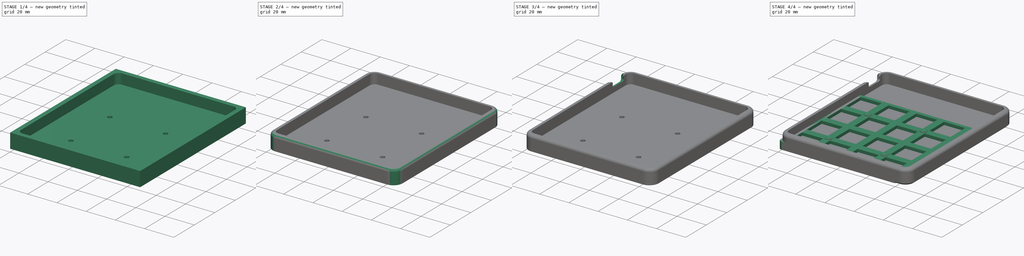
[diagram: build sequence overview — one tinted view per stage of 4, left to right]
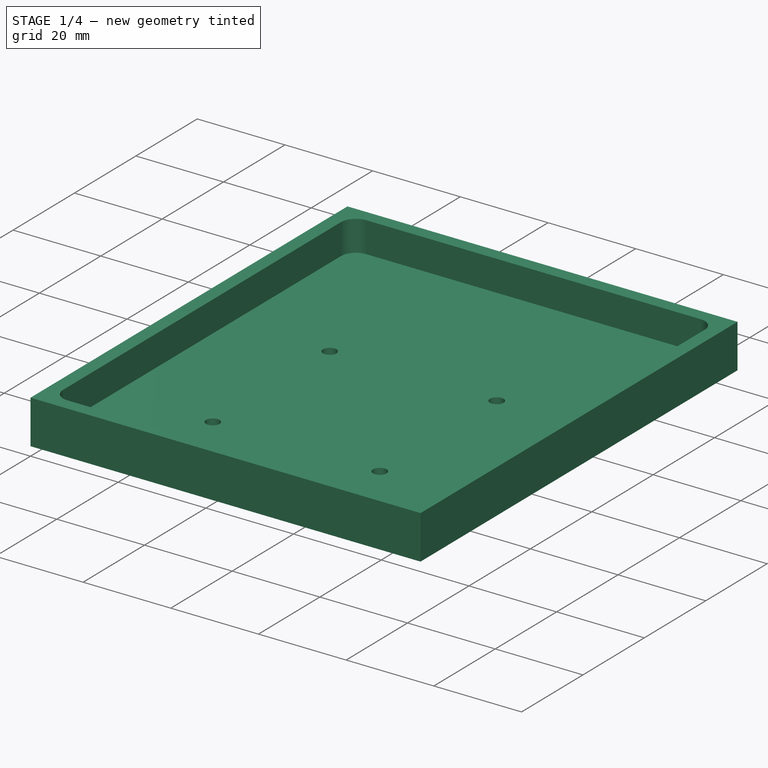
[diagram: stage 1 of 4 — iso view after this stage's code; geometry added in this stage tinted green]
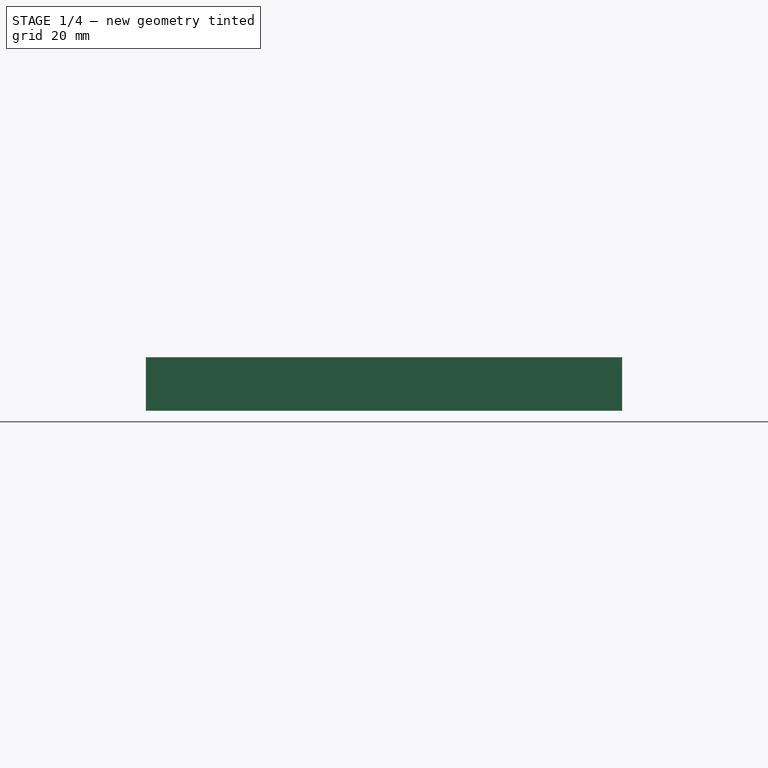
[diagram: stage 1 of 4 — front view after this stage's code; geometry added in this stage tinted green]
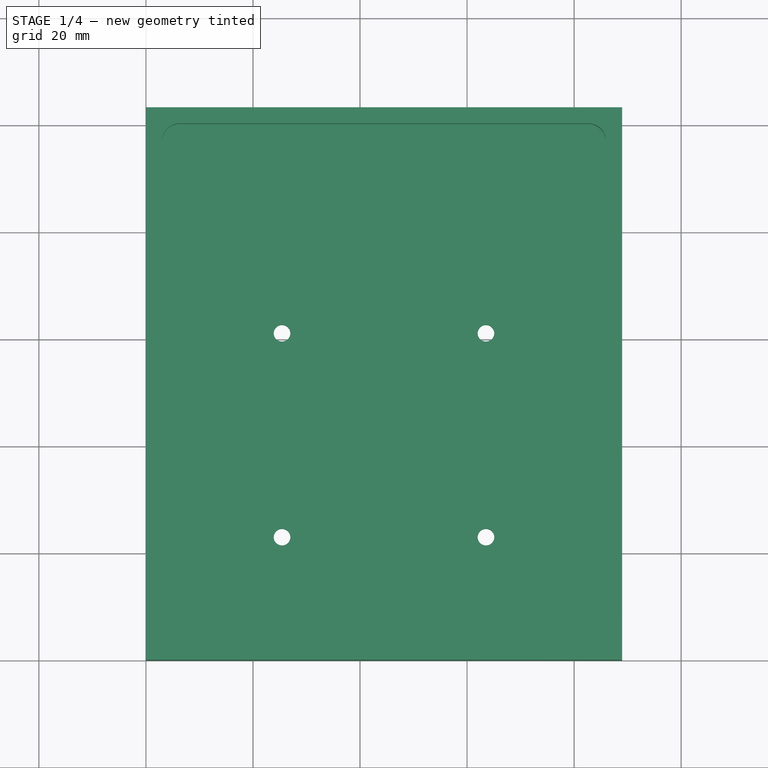
[diagram: stage 1 of 4 — top view after this stage's code; geometry added in this stage tinted green]
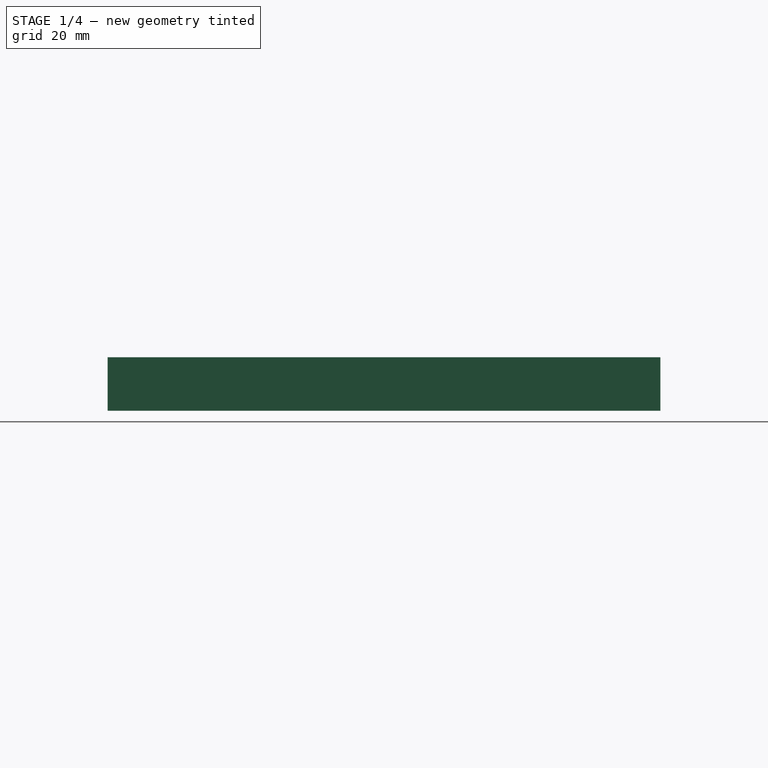
[diagram: stage 1 of 4 — right view after this stage's code; geometry added in this stage tinted green]
FCSTD DOCUMENT  (FreeCAD 0.19R)
Label: numpad
License: All rights reserved
LicenseURL: http://en.wikipedia.org/wiki/All_rights_reserved
objects: Sketcher::SketchObject×7, PartDesign::Fillet×5, PartDesign::Pocket×5, PartDesign::Pad×2, PartDesign::Chamfer×2, PartDesign::Body×2, Spreadsheet::Sheet×1
note: 37 computed .brp shape members not serialized (recipe doc carries the construction recipe); baked Part::Feature solids carry a one-line shape summary decoded from their .brp

FEATURE [PartDesign::Body] Body  label="Plate"
  Group = -> [Sketch,Pad,Chamfer,Fillet]
  Origin = -> Origin
  Placement = pos=(4,4,5) rot=(0,0,1;0rad)
  Tip = -> Fillet
  expr: .Placement.Base.x = <<Const>>.wall_thickness + <<Const>>.airgap
  expr: .Placement.Base.y = <<Const>>.wall_thickness + <<Const>>.airgap
  expr: .Placement.Base.z = <<Const>>.case_height - <<Const>>.plate_thickness
FEATURE [Sketcher::SketchObject] Sketch001
  FullyConstrained = true
  MapMode = 5
  Support = -> [XY_Plane001]
  expr: Constraints[9] = <<Const>>.switch * 5 + 2 * (<<Const>>.airgap + <<Const>>.wall_thickness)
  expr: Constraints[10] = <<Const>>.switch * 4.25 + 2 * (<<Const>>.airgap + <<Const>>.wall_thickness)
  sketch-geometry (4):
    g0: LineSegment StartX=0 StartY=0 StartZ=0 EndX=88.9625 EndY=0 EndZ=0
    g1: LineSegment StartX=88.9625 StartY=0 StartZ=0 EndX=88.9625 EndY=103.25 EndZ=0
    g2: LineSegment StartX=0 StartY=0 StartZ=0 EndX=0 EndY=103.25 EndZ=0
    g3: LineSegment StartX=0 StartY=103.25 StartZ=0 EndX=88.9625 EndY=103.25 EndZ=0
  constraints (11):
    c: Coincident(g0,g-1)
    c: Horizontal(g0)
    c: Coincident(g1,g0)
    c: Vertical(g1)
    c: Coincident(g2,g0)
    c: Vertical(g2)
    c: Coincident(g3,g2)
    c: Coincident(g3,g1)
    c: Horizontal(g3)
    c: DistanceY(g1,g1) = 103.25
    c: DistanceX(g0,g0) = 88.9625
FEATURE [PartDesign::Pad] Pad001
  Direction = (1,1,1)
  Length = 10
  Length2 = 100
  Profile = -> Sketch001
  Type = 0
  expr: Length = <<Const>>.case_height
FEATURE [Sketcher::SketchObject] Sketch002
  FullyConstrained = true
  MapMode = 5
  Placement = pos=(0,0,10) rot=(0,0,1;0rad)
  Support = -> [Pad001]
  expr: Constraints[5] = <<Const>>.wall_thickness
  expr: Constraints[15] = 2 * <<Const>>.airgap + <<Const>>.switch * 4.25
  expr: Constraints[16] = 2 * <<Const>>.airgap + <<Const>>.switch * 5
  sketch-geometry (6):
    g0: LineSegment StartX=0 StartY=0 StartZ=0 EndX=3 EndY=0 EndZ=0
    g1: LineSegment StartX=3 StartY=0 StartZ=0 EndX=3 EndY=3 EndZ=0
    g2: LineSegment StartX=3 StartY=3 StartZ=0 EndX=85.9625 EndY=3 EndZ=0
    g3: LineSegment StartX=85.9625 StartY=3 StartZ=0 EndX=85.9625 EndY=100.25 EndZ=0
    g4: LineSegment StartX=85.9625 StartY=100.25 StartZ=0 EndX=3 EndY=100.25 EndZ=0
    g5: LineSegment StartX=3 StartY=100.25 StartZ=0 EndX=3 EndY=3 EndZ=0
  constraints (17):
    c: Coincident(g0,g-1)
    c: Horizontal(g0)
    c: Coincident(g1,g0)
    c: Vertical(g1)
    c: Equal(g1,g0)
    c: DistanceX(g0,g0) = 3
    c: Coincident(g2,g1)
    c: Horizontal(g2)
    c: Coincident(g3,g2)
    c: Vertical(g3)
    c: Coincident(g4,g3)
    c: Horizontal(g4)
    c: Coincident(g5,g4)
    c: Coincident(g5,g2)
    c: Vertical(g5)
    c: DistanceX(g2,g2) = 82.9625
    c: DistanceY(g3,g3) = 97.25
FEATURE [PartDesign::Pocket] Pocket
  BaseFeature = -> Pad001
  Length = 7
  Length2 = 100
  Profile = -> Sketch002
  Type = 0
  expr: Length = <<Const>>.case_height - <<Const>>.case_bottom
FEATURE [Sketcher::SketchObject] Sketch003
  FullyConstrained = true
  MapMode = 5
  Placement = pos=(0,0,0) rot=(1,0,0;3.14159rad)
  Support = -> [Pocket]
  expr: Constraints[4] = <<Const>>.wall_thickness + <<Const>>.airgap
  expr: Constraints[5] = <<Const>>.switch * 1.125
  expr: Constraints[8] = <<Const>>.switch + <<Const>>.wall_thickness + <<Const>>.airgap
  expr: Constraints[13] = <<Const>>.threaded_insert
  expr: Constraints[27] = <<Const>>.switch * 2
  sketch-geometry (11):
    g0: LineSegment StartX=0 StartY=0 StartZ=0 EndX=4 EndY=0 EndZ=0
    g1: LineSegment StartX=4 StartY=0 StartZ=0 EndX=25.4313 EndY=0 EndZ=0
    g2: LineSegment StartX=25.4313 StartY=0 StartZ=0 EndX=25.4313 EndY=-23.05 EndZ=0
    g3: Circle CenterX=25.4313 CenterY=-23.05 CenterZ=0 NormalX=0 NormalY=0 NormalZ=1 AngleXU=0 Radius=1.55
    g4: Circle CenterX=63.5312 CenterY=-23.05 CenterZ=0 NormalX=0 NormalY=0 NormalZ=1 AngleXU=0 Radius=1.55
    g5: Circle CenterX=63.5312 CenterY=-61.15 CenterZ=0 NormalX=0 NormalY=0 NormalZ=1 AngleXU=0 Radius=1.55
    g6: Circle CenterX=25.4313 CenterY=-61.15 CenterZ=0 NormalX=0 NormalY=0 NormalZ=1 AngleXU=0 Radius=1.55
    g7: LineSegment StartX=63.5312 StartY=-23.05 StartZ=0 EndX=25.4313 EndY=-23.05 EndZ=0
    g8: LineSegment StartX=25.4313 StartY=-23.05 StartZ=0 EndX=25.4313 EndY=-61.15 EndZ=0
    g9: LineSegment StartX=25.4313 StartY=-61.15 StartZ=0 EndX=63.5312 EndY=-61.15 EndZ=0
    g10: LineSegment StartX=63.5312 StartY=-61.15 StartZ=0 EndX=63.5312 EndY=-23.05 EndZ=0
  constraints (28):
    c: Coincident(g0,g-1)
    c: Coincident(g1,g0)
    c: Horizontal(g1)
    c: Horizontal(g0)
    c: DistanceX(g0,g0) = 4
    c: DistanceX(g1,g1) = 21.4313
    c: Coincident(g2,g1)
    c: Vertical(g2)
    c: DistanceY(g2,g2) = 23.05
    c: Coincident(g3,g2)
    c: Equal(g3,g6)
    c: Equal(g6,g4)
    c: Equal(g4,g5)
    c: Diameter(g3) = 3.1
    c: Coincident(g7,g4)
    c: Coincident(g7,g3)
    c: Horizontal(g7)
    c: Coincident(g8,g3)
    c: Coincident(g8,g6)
    c: Vertical(g8)
    c: Coincident(g9,g6)
    c: Coincident(g9,g5)
    c: Coincident(g10,g5)
    c: Coincident(g10,g4)
    c: Vertical(g10)
    c: Horizontal(g9)
    c: Equal(g9,g8)
    c: DistanceY(g8,g8) = 38.1
FEATURE [PartDesign::Pocket] Pocket001
  BaseFeature = -> Pocket
  Length = 5
  Length2 = 100
  Profile = -> Sketch003
  Type = 1
FEATURE [PartDesign::Fillet] Fillet001  label="innerFillets"
  Base = -> Pocket001 [Edge30,Edge32,Edge34,Edge29]
  BaseFeature = -> Pocket001
  Radius = 3.38125
  SupportTransform = false
  expr: Radius = <<Const>>.switch / 16 * 2 + <<Const>>.airgap
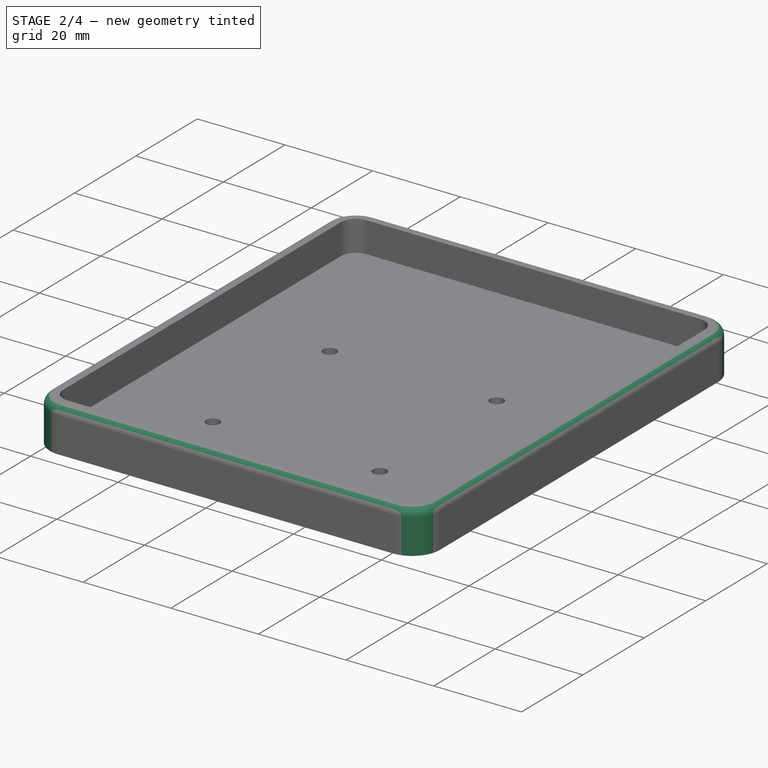
[diagram: stage 2 of 4 — iso view after this stage's code; geometry added in this stage tinted green]
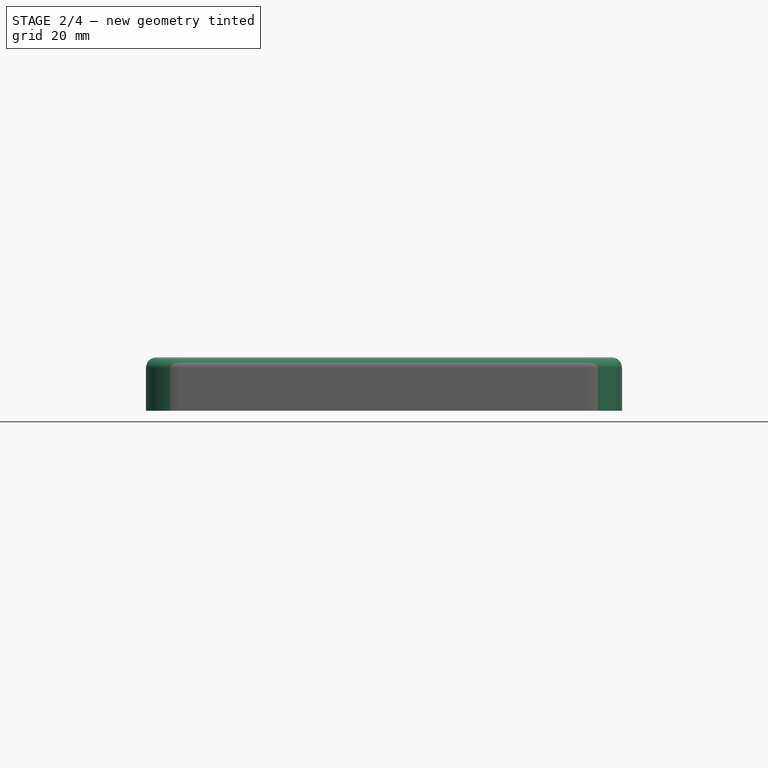
[diagram: stage 2 of 4 — front view after this stage's code; geometry added in this stage tinted green]
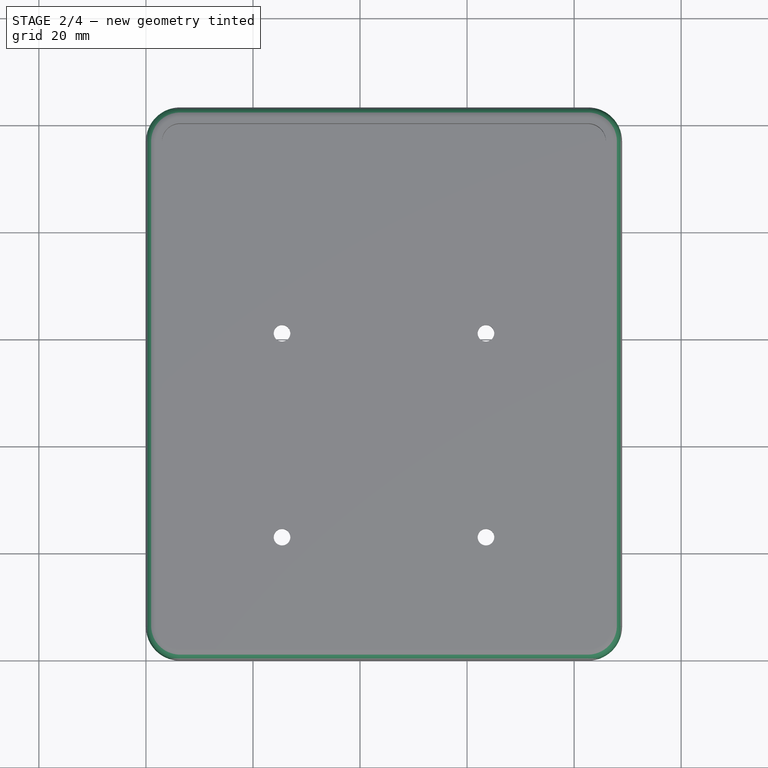
[diagram: stage 2 of 4 — top view after this stage's code; geometry added in this stage tinted green]
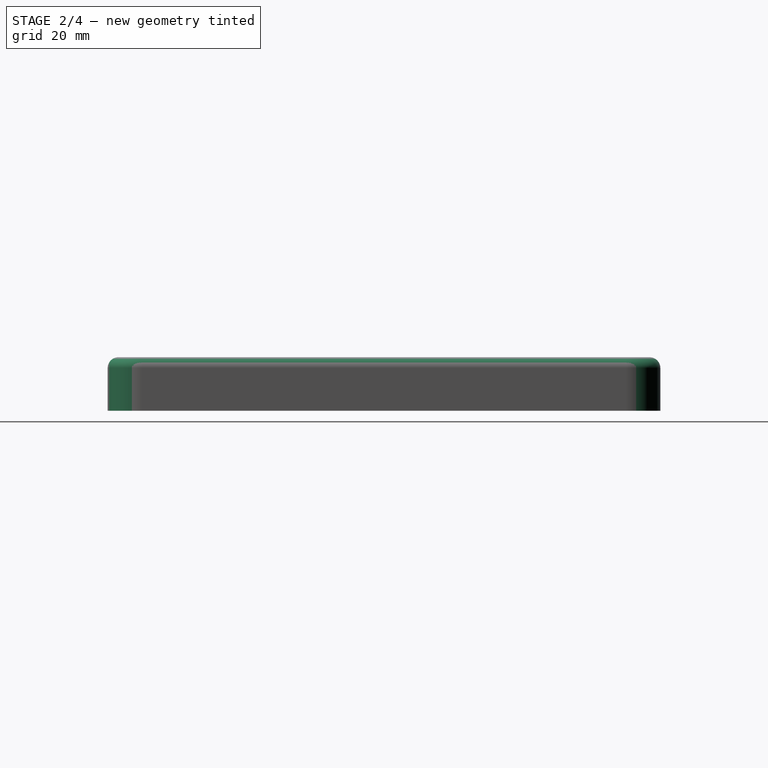
[diagram: stage 2 of 4 — right view after this stage's code; geometry added in this stage tinted green]
FEATURE [PartDesign::Fillet] Fillet002  label="outerFillets"
  Base = -> Fillet001 [Edge29,Edge30,Edge34,Edge32]
  BaseFeature = -> Fillet001
  Radius = 6.38125
  SupportTransform = false
  expr: Radius = <<Const>>.switch / 16 * 2 + <<Const>>.wall_thickness + <<Const>>.airgap
FEATURE [PartDesign::Fillet] Fillet003
  Base = -> Fillet002 [Edge1]
  BaseFeature = -> Fillet002
  Radius = 2
  SupportTransform = false
  expr: Radius = <<Const>>.wall_thickness * 2 / 3
FEATURE [Sketcher::SketchObject] Sketch004
  FullyConstrained = true
  MapMode = 5
  Placement = pos=(0,0,0) rot=(1,0,0;3.14159rad)
  Support = -> [Fillet003]
  expr: Constraints[15] = <<Const>>.feet
  expr: Constraints[16] = <<Const>>.switch * 4
  expr: Constraints[24] = <<Const>>.switch / 16 * 2 + <<Const>>.airgap + <<Const>>.wall_thickness
  sketch-geometry (10):
    g0: Circle CenterX=82.5812 CenterY=-6.38125 CenterZ=0 NormalX=0 NormalY=0 NormalZ=1 AngleXU=0 Radius=3.5
    g1: Circle CenterX=6.38125 CenterY=-6.38125 CenterZ=0 NormalX=0 NormalY=0 NormalZ=1 AngleXU=0 Radius=3.5
    g2: Circle CenterX=6.38125 CenterY=-96.3712 CenterZ=0 NormalX=0 NormalY=0 NormalZ=1 AngleXU=0 Radius=3.5
    g3: Circle CenterX=82.5812 CenterY=-96.3712 CenterZ=0 NormalX=0 NormalY=0 NormalZ=1 AngleXU=0 Radius=3.5
    g4: LineSegment StartX=82.5812 StartY=-6.38125 StartZ=0 EndX=6.38125 EndY=-6.38125 EndZ=0
    g5: LineSegment StartX=6.38125 StartY=-6.38125 StartZ=0 EndX=6.38125 EndY=-96.3712 EndZ=0
    g6: LineSegment StartX=6.38125 StartY=-96.3712 StartZ=0 EndX=82.5812 EndY=-96.3712 EndZ=0
    g7: LineSegment StartX=82.5812 StartY=-96.3712 StartZ=0 EndX=82.5812 EndY=-6.38125 EndZ=0
    g8: LineSegment StartX=6.38125 StartY=-6.38125 StartZ=0 EndX=6.38125 EndY=0 EndZ=0
    g9: LineSegment StartX=6.38125 StartY=0 StartZ=0 EndX=0 EndY=0 EndZ=0
  constraints (25):
    c: Coincident(g4,g0)
    c: Coincident(g4,g1)
    c: Horizontal(g4)
    c: Coincident(g5,g1)
    c: Coincident(g5,g2)
    c: Vertical(g5)
    c: Coincident(g6,g2)
    c: Coincident(g6,g3)
    c: Coincident(g7,g3)
    c: Coincident(g7,g0)
    c: Vertical(g7)
    c: Horizontal(g6)
    c: Equal(g0,g1)
    c: Equal(g1,g2)
    c: Equal(g2,g3)
    c: Diameter(g1) = 7
    c: DistanceX(g4,g4) = 76.2
    c: DistanceY(g5,g5) = 89.99
    c: Coincident(g8,g1)
    c: Vertical(g8)
    c: Coincident(g9,g8)
    c: Coincident(g9,g-1)
    c: Horizontal(g9)
    c: Equal(g8,g9)
    c: DistanceX(g9,g9) = 6.38125
FEATURE [PartDesign::Pocket] Pocket002
  BaseFeature = -> Fillet003
  Length = 1
  Length2 = 100
  Profile = -> Sketch004
  Type = 0
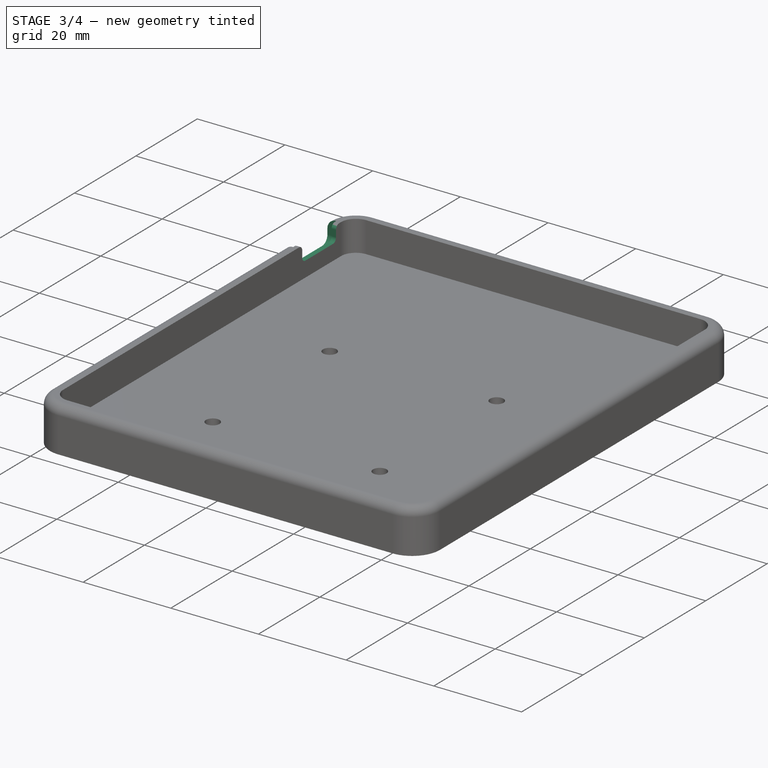
[diagram: stage 3 of 4 — iso view after this stage's code; geometry added in this stage tinted green]
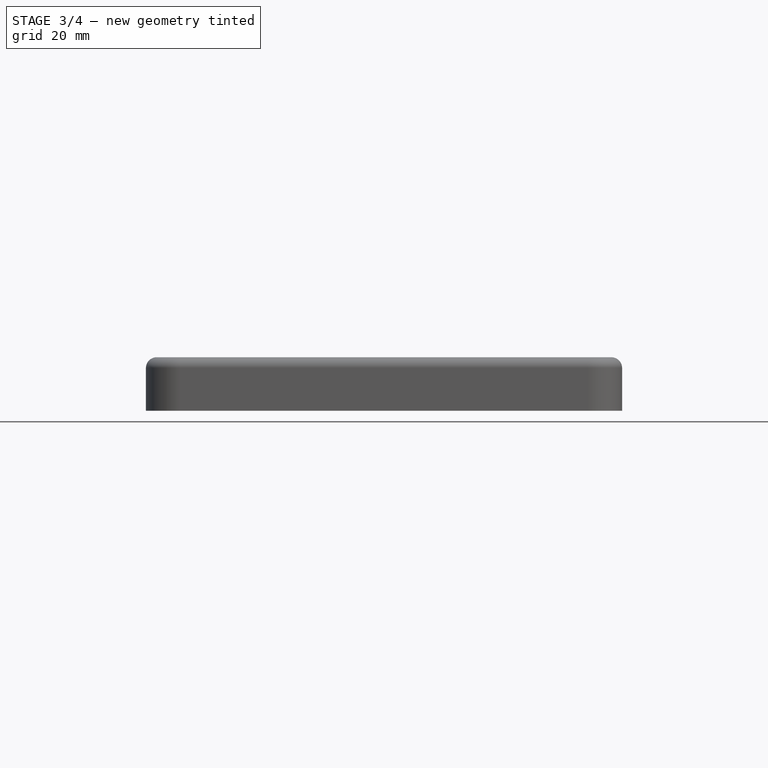
[diagram: stage 3 of 4 — front view after this stage's code; geometry added in this stage tinted green]
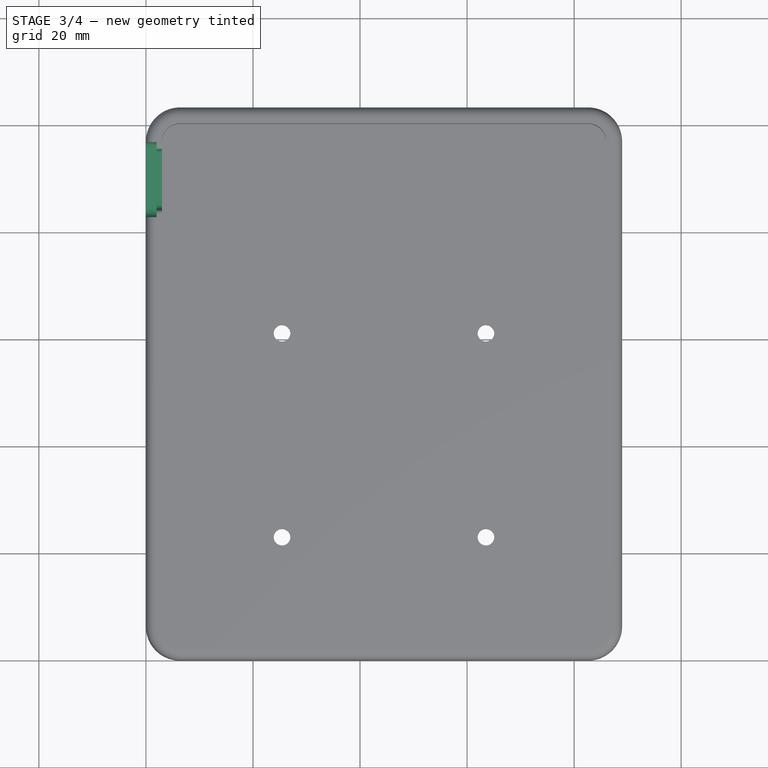
[diagram: stage 3 of 4 — top view after this stage's code; geometry added in this stage tinted green]
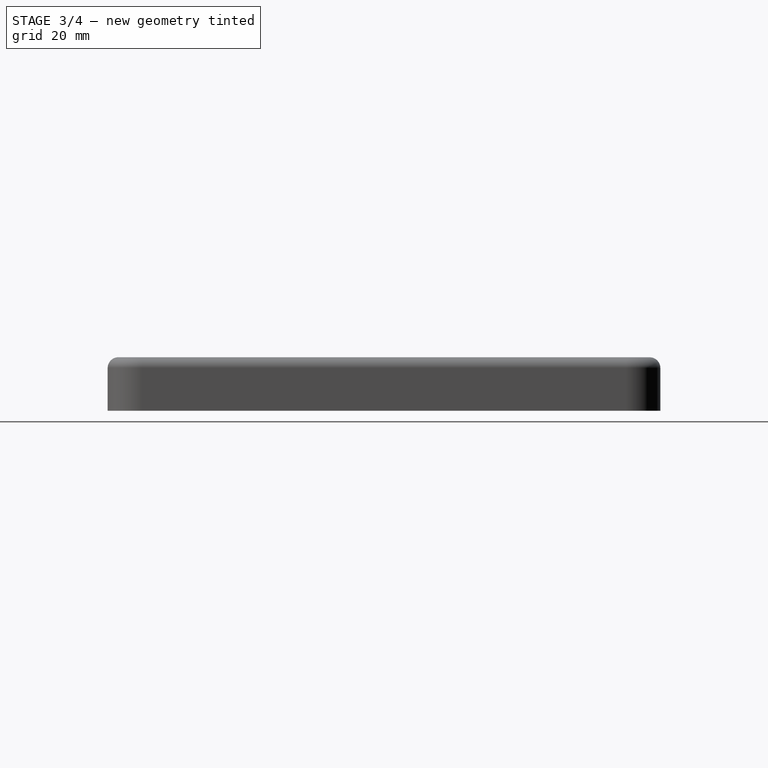
[diagram: stage 3 of 4 — right view after this stage's code; geometry added in this stage tinted green]
FEATURE [Sketcher::SketchObject] Sketch005
  FullyConstrained = true
  MapMode = 5
  Placement = pos=(0,0,0) rot=(0.57735,-0.57735,-0.57735;2.0944rad)
  Support = -> [Pocket002]
  expr: Constraints[27] = <<Const>>.case_height
  expr: Constraints[5] = <<Const>>.case_bottom + 3.5
  expr: Constraints[2] = <<Const>>.wall_thickness + <<Const>>.airgap + <<Const>>.switch * 4.5
  sketch-geometry (9):
    g0: LineSegment StartX=0 StartY=0 StartZ=0 EndX=-89.725 EndY=0 EndZ=0
    g1: LineSegment StartX=-89.725 StartY=0 StartZ=0 EndX=-89.725 EndY=6.5 EndZ=0
    g2: LineSegment StartX=-89.725 StartY=6.5 StartZ=0 EndX=-85.225 EndY=6.5 EndZ=0
    g3: LineSegment StartX=-89.725 StartY=6.5 StartZ=0 EndX=-94.225 EndY=6.5 EndZ=0
    g4: ArcOfCircle CenterX=-85.225 CenterY=7.5 CenterZ=0 NormalX=0 NormalY=0 NormalZ=1 AngleXU=0 Radius=1 StartAngle=4.71239 EndAngle=6.28319
    g5: ArcOfCircle CenterX=-94.225 CenterY=7.5 CenterZ=0 NormalX=0 NormalY=0 NormalZ=1 AngleXU=0 Radius=1 StartAngle=3.14159 EndAngle=4.71239
    g6: LineSegment StartX=-95.225 StartY=7.5 StartZ=0 EndX=-95.225 EndY=17.5 EndZ=0
    g7: LineSegment StartX=-84.225 StartY=7.5 StartZ=0 EndX=-84.225 EndY=17.5 EndZ=0
    g8: LineSegment StartX=-95.225 StartY=17.5 StartZ=0 EndX=-84.225 EndY=17.5 EndZ=0
  constraints (28):
    c: Coincident(g0,g-1)
    c: Horizontal(g0)
    c: DistanceX(g0,g0) = 89.725
    c: Coincident(g1,g0)
    c: Vertical(g1)
    c: DistanceY(g1,g1) = 6.5
    c: Coincident(g2,g1)
    c: Horizontal(g2)
    c: Coincident(g3,g1)
    c: Horizontal(g3)
    c: Equal(g3,g2)
    c: Coincident(g4,g2)
    c: Coincident(g5,g3)
    c: Horizontal(g5,g4)
    c: Horizontal(g4,g5)
    c: Horizontal(g5,g4)
    c: Vertical(g3,g5)
    c: Vertical(g2,g4)
    c: Radius(g4) = 1
    c: Coincident(g6,g5)
    c: Vertical(g6)
    c: Coincident(g7,g4)
    c: Vertical(g7)
    c: Coincident(g8,g6)
    c: Coincident(g8,g7)
    c: Horizontal(g8)
    c: DistanceX(g8,g8) = 11
    c: DistanceY(g7,g7) = 10
FEATURE [PartDesign::Pocket] Pocket003
  BaseFeature = -> Pocket002
  Length = 5
  Length2 = 100
  Profile = -> Sketch005
  Type = 0
FEATURE [Sketcher::SketchObject] Sketch006
  FullyConstrained = true
  MapMode = 5
  Placement = pos=(0,0,0) rot=(0.57735,-0.57735,-0.57735;2.0944rad)
  Support = -> [Pocket003]
  expr: Constraints[27] = <<Const>>.case_height
  expr: Constraints[25] = 1 + 1.5 / 2
  expr: Constraints[24] = 11 + 1.5 * 2
  expr: Constraints[16] = <<Const>>.case_bottom + 3.5 - 1.5
  expr: Constraints[2] = <<Const>>.wall_thickness + <<Const>>.airgap + <<Const>>.switch * 4.5
  sketch-geometry (9):
    g0: LineSegment StartX=0 StartY=0 StartZ=0 EndX=-89.725 EndY=0 EndZ=0
    g1: LineSegment StartX=-89.725 StartY=5 StartZ=0 EndX=-94.975 EndY=5 EndZ=0
    g2: LineSegment StartX=-89.725 StartY=5 StartZ=0 EndX=-84.475 EndY=5 EndZ=0
    g3: ArcOfCircle CenterX=-94.975 CenterY=6.75 CenterZ=0 NormalX=0 NormalY=0 NormalZ=1 AngleXU=0 Radius=1.75 StartAngle=3.14159 EndAngle=4.71239
    g4: ArcOfCircle CenterX=-84.475 CenterY=6.75 CenterZ=0 NormalX=0 NormalY=0 NormalZ=1 AngleXU=0 Radius=1.75 StartAngle=4.71239 EndAngle=6.28319
    g5: LineSegment StartX=-89.725 StartY=5 StartZ=0 EndX=-89.725 EndY=0 EndZ=0
    g6: LineSegment StartX=-96.725 StartY=6.75 StartZ=0 EndX=-96.725 EndY=16.75 EndZ=0
    g7: LineSegment StartX=-96.725 StartY=16.75 StartZ=0 EndX=-82.725 EndY=16.75 EndZ=0
    g8: LineSegment StartX=-82.725 StartY=16.75 StartZ=0 EndX=-82.725 EndY=6.75 EndZ=0
  constraints (28):
    c: Coincident(g0,g-1)
    c: Horizontal(g0)
    c: DistanceX(g0,g0) = 89.725
    c: Horizontal(g1)
    c: Coincident(g2,g1)
    c: Horizontal(g2)
    c: Coincident(g3,g1)
    c: Coincident(g4,g2)
    c: Horizontal(g4,g4)
    c: Horizontal(g4,g3)
    c: Horizontal(g3,g3)
    c: Vertical(g1,g3)
    c: Vertical(g2,g4)
    c: Coincident(g5,g1)
    c: Coincident(g5,g0)
    c: Vertical(g5)
    c: DistanceY(g5,g5) = 5
    c: Coincident(g6,g3)
    c: Vertical(g6)
    c: Coincident(g7,g6)
    c: Horizontal(g7)
    c: Coincident(g8,g7)
    c: Coincident(g8,g4)
    c: Vertical(g8)
    c: DistanceX(g7,g7) = 14
    c: Radius(g3) = 1.75
    c: Equal(g1,g2)
    c: DistanceY(g8,g8) = 10
FEATURE [PartDesign::Pocket] Pocket004
  BaseFeature = -> Pocket003
  Length = 2
  Length2 = 100
  Profile = -> Sketch006
  Type = 0
  expr: Length = <<Const>>.wall_thickness - 1
FEATURE [PartDesign::Fillet] Fillet004
  Base = -> Pocket004 [Edge4,Edge14]
  BaseFeature = -> Pocket004
  Radius = 1
  SupportTransform = false
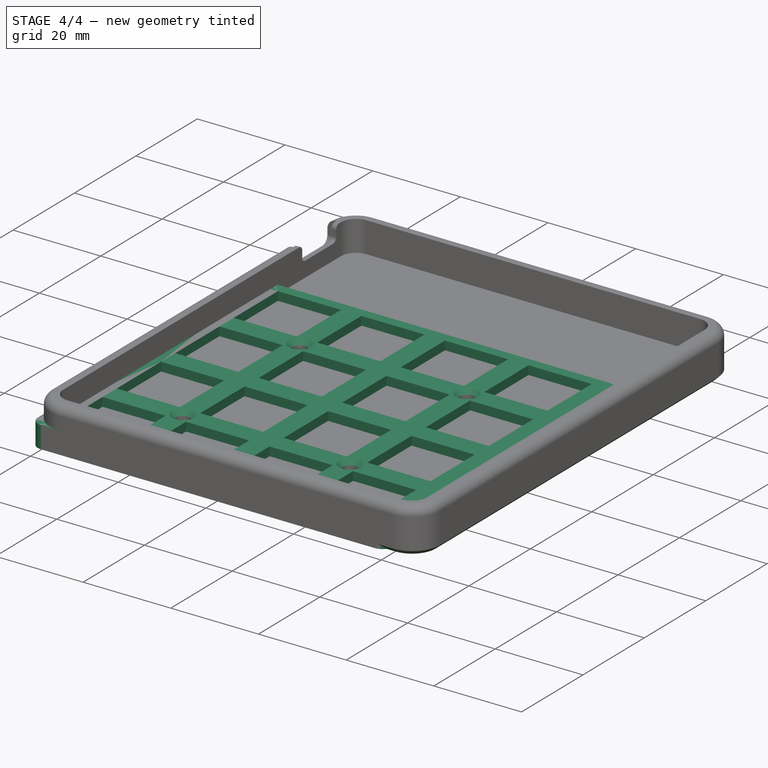
[diagram: stage 4 of 4 — iso view after this stage's code; geometry added in this stage tinted green]
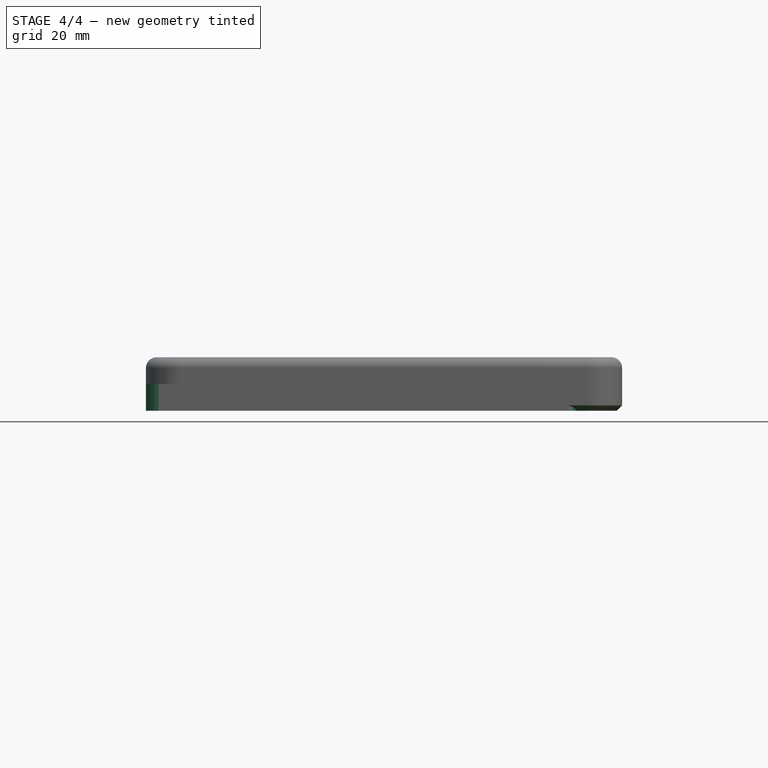
[diagram: stage 4 of 4 — front view after this stage's code; geometry added in this stage tinted green]
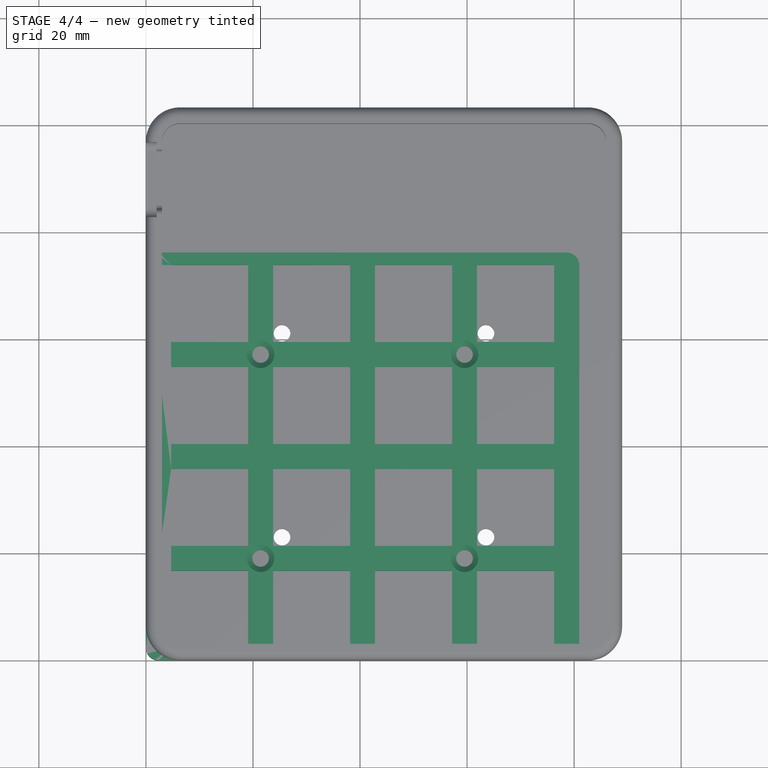
[diagram: stage 4 of 4 — top view after this stage's code; geometry added in this stage tinted green]
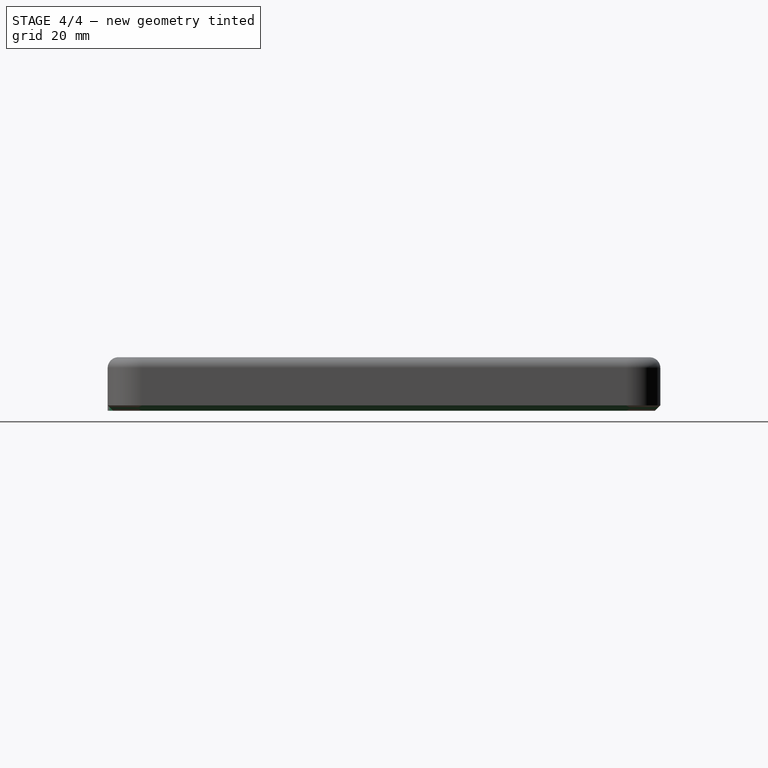
[diagram: stage 4 of 4 — right view after this stage's code; geometry added in this stage tinted green]
FEATURE [Sketcher::SketchObject] Sketch
  FullyConstrained = true
  MapMode = 5
  Support = -> [XY_Plane]
  expr: Constraints[6] = <<Const>>.switch * 4
  expr: Constraints[10] = <<Const>>.switch * 4.25
  expr: Constraints[20] = <<Const>>.switch_hole
  expr: Constraints[212] = <<Const>>.switch
  expr: Constraints[221] = <<Const>>.threaded_insert
  sketch-geometry (93):
    g0: LineSegment StartX=0 StartY=0 StartZ=0 EndX=80.9625 EndY=0 EndZ=0
    g1: LineSegment StartX=80.9625 StartY=0 StartZ=0 EndX=80.9625 EndY=76.2 EndZ=0
    g2: LineSegment StartX=0 StartY=0 StartZ=0 EndX=0 EndY=76.2 EndZ=0
    g3: LineSegment StartX=0 StartY=76.2 StartZ=0 EndX=80.9625 EndY=76.2 EndZ=0
    g4: LineSegment StartX=4.70625 StartY=16.725 StartZ=0 EndX=4.70625 EndY=2.325 EndZ=0
    g5: LineSegment StartX=4.70625 StartY=2.325 StartZ=0 EndX=19.1063 EndY=2.325 EndZ=0
    g6: LineSegment StartX=19.1063 StartY=2.325 StartZ=0 EndX=19.1063 EndY=16.725 EndZ=0
    g7: LineSegment StartX=4.70625 StartY=16.725 StartZ=0 EndX=19.1063 EndY=16.725 EndZ=0
    g8: LineSegment StartX=23.7563 StartY=16.725 StartZ=0 EndX=23.7563 EndY=2.325 EndZ=0
    g9: LineSegment StartX=23.7563 StartY=2.325 StartZ=0 EndX=38.1562 EndY=2.325 EndZ=0
    g10: LineSegment StartX=38.1562 StartY=2.325 StartZ=0 EndX=38.1562 EndY=16.725 EndZ=0
    g11: LineSegment StartX=23.7563 StartY=16.725 StartZ=0 EndX=38.1562 EndY=16.725 EndZ=0
    g12: LineSegment StartX=42.8063 StartY=16.725 StartZ=0 EndX=42.8063 EndY=2.325 EndZ=0
    g13: LineSegment StartX=42.8063 StartY=2.325 StartZ=0 EndX=57.2063 EndY=2.325 EndZ=0
    g14: LineSegment StartX=57.2063 StartY=2.325 StartZ=0 EndX=57.2063 EndY=16.725 EndZ=0
    g15: LineSegment StartX=42.8063 StartY=16.725 StartZ=0 EndX=57.2063 EndY=16.725 EndZ=0
    g16: LineSegment StartX=61.8563 StartY=16.725 StartZ=0 EndX=61.8563 EndY=2.325 EndZ=0
    g17: LineSegment StartX=61.8563 StartY=2.325 StartZ=0 EndX=76.2563 EndY=2.325 EndZ=0
    g18: LineSegment StartX=76.2563 StartY=2.325 StartZ=0 EndX=76.2563 EndY=16.725 EndZ=0
    g19: LineSegment StartX=61.8563 StartY=16.725 StartZ=0 EndX=76.2563 EndY=16.725 EndZ=0
    g20: LineSegment StartX=4.70625 StartY=35.775 StartZ=0 EndX=4.70625 EndY=21.375 EndZ=0
    g21: LineSegment StartX=4.70625 StartY=21.375 StartZ=0 EndX=19.1063 EndY=21.375 EndZ=0
    g22: LineSegment StartX=19.1063 StartY=21.375 StartZ=0 EndX=19.1063 EndY=35.775 EndZ=0
    g23: LineSegment StartX=4.70625 StartY=35.775 StartZ=0 EndX=19.1063 EndY=35.775 EndZ=0
    g24: LineSegment StartX=23.7563 StartY=35.775 StartZ=0 EndX=23.7563 EndY=21.375 EndZ=0
    g25: LineSegment StartX=23.7563 StartY=21.375 StartZ=0 EndX=38.1562 EndY=21.375 EndZ=0
    g26: LineSegment StartX=38.1562 StartY=21.375 StartZ=0 EndX=38.1562 EndY=35.775 EndZ=0
    g27: LineSegment StartX=23.7563 StartY=35.775 StartZ=0 EndX=38.1562 EndY=35.775 EndZ=0
    g28: LineSegment StartX=42.8063 StartY=35.775 StartZ=0 EndX=42.8063 EndY=21.375 EndZ=0
    g29: LineSegment StartX=42.8063 StartY=21.375 StartZ=0 EndX=57.2063 EndY=21.375 EndZ=0
    g30: LineSegment StartX=57.2063 StartY=21.375 StartZ=0 EndX=57.2063 EndY=35.775 EndZ=0
    g31: LineSegment StartX=42.8063 StartY=35.775 StartZ=0 EndX=57.2063 EndY=35.775 EndZ=0
    g32: LineSegment StartX=61.8563 StartY=35.775 StartZ=0 EndX=61.8563 EndY=21.375 EndZ=0
    g33: LineSegment StartX=61.8563 StartY=21.375 StartZ=0 EndX=76.2563 EndY=21.375 EndZ=0
    g34: LineSegment StartX=76.2563 StartY=21.375 StartZ=0 EndX=76.2563 EndY=35.775 EndZ=0
    g35: LineSegment StartX=61.8563 StartY=35.775 StartZ=0 EndX=76.2563 EndY=35.775 EndZ=0
    g36: LineSegment StartX=4.70625 StartY=54.825 StartZ=0 EndX=4.70625 EndY=40.425 EndZ=0
    g37: LineSegment StartX=4.70625 StartY=40.425 StartZ=0 EndX=19.1063 EndY=40.425 EndZ=0
    g38: LineSegment StartX=19.1063 StartY=40.425 StartZ=0 EndX=19.1063 EndY=54.825 EndZ=0
    g39: LineSegment StartX=4.70625 StartY=54.825 StartZ=0 EndX=19.1063 EndY=54.825 EndZ=0
    g40: LineSegment StartX=23.7563 StartY=54.825 StartZ=0 EndX=23.7563 EndY=40.425 EndZ=0
    g41: LineSegment StartX=23.7563 StartY=40.425 StartZ=0 EndX=38.1562 EndY=40.425 EndZ=0
    g42: LineSegment StartX=38.1562 StartY=40.425 StartZ=0 EndX=38.1562 EndY=54.825 EndZ=0
    g43: LineSegment StartX=23.7563 StartY=54.825 StartZ=0 EndX=38.1562 EndY=54.825 EndZ=0
    g44: LineSegment StartX=42.8063 StartY=54.825 StartZ=0 EndX=42.8063 EndY=40.425 EndZ=0
    g45: LineSegment StartX=42.8063 StartY=40.425 StartZ=0 EndX=57.2063 EndY=40.425 EndZ=0
    g46: LineSegment StartX=57.2063 StartY=40.425 StartZ=0 EndX=57.2063 EndY=54.825 EndZ=0
    g47: LineSegment StartX=42.8063 StartY=54.825 StartZ=0 EndX=57.2063 EndY=54.825 EndZ=0
    g48: LineSegment StartX=61.8563 StartY=54.825 StartZ=0 EndX=61.8563 EndY=40.425 EndZ=0
    g49: LineSegment StartX=61.8563 StartY=40.425 StartZ=0 EndX=76.2563 EndY=40.425 EndZ=0
    g50: LineSegment StartX=76.2563 StartY=40.425 StartZ=0 EndX=76.2563 EndY=54.825 EndZ=0
    g51: LineSegment StartX=61.8563 StartY=54.825 StartZ=0 EndX=76.2563 EndY=54.825 EndZ=0
    g52: LineSegment StartX=4.70625 StartY=73.875 StartZ=0 EndX=4.70625 EndY=59.475 EndZ=0
    g53: LineSegment StartX=4.70625 StartY=59.475 StartZ=0 EndX=19.1063 EndY=59.475 EndZ=0
    g54: LineSegment StartX=19.1063 StartY=59.475 StartZ=0 EndX=19.1063 EndY=73.875 EndZ=0
    g55: LineSegment StartX=4.70625 StartY=73.875 StartZ=0 EndX=19.1063 EndY=73.875 EndZ=0
    g56: LineSegment StartX=23.7563 StartY=73.875 StartZ=0 EndX=23.7563 EndY=59.475 EndZ=0
    g57: LineSegment StartX=23.7563 StartY=59.475 StartZ=0 EndX=38.1562 EndY=59.475 EndZ=0
    g58: LineSegment StartX=38.1562 StartY=59.475 StartZ=0 EndX=38.1562 EndY=73.875 EndZ=0
    g59: LineSegment StartX=23.7563 StartY=73.875 StartZ=0 EndX=38.1562 EndY=73.875 EndZ=0
    g60: LineSegment StartX=42.8063 StartY=73.875 StartZ=0 EndX=42.8063 EndY=59.475 EndZ=0
    g61: LineSegment StartX=42.8063 StartY=73.875 StartZ=0 EndX=57.2063 EndY=73.875 EndZ=0
    g62: LineSegment StartX=57.2063 StartY=73.875 StartZ=0 EndX=57.2063 EndY=59.475 EndZ=0
    g63: LineSegment StartX=42.8063 StartY=59.475 StartZ=0 EndX=57.2063 EndY=59.475 EndZ=0
    g64: LineSegment StartX=61.8563 StartY=73.875 StartZ=0 EndX=61.8563 EndY=59.475 EndZ=0
    g65: LineSegment StartX=61.8563 StartY=59.475 StartZ=0 EndX=76.2563 EndY=59.475 EndZ=0
    g66: LineSegment StartX=76.2563 StartY=59.475 StartZ=0 EndX=76.2563 EndY=73.875 EndZ=0
    g67: LineSegment StartX=61.8563 StartY=73.875 StartZ=0 EndX=76.2563 EndY=73.875 EndZ=0
    g68: LineSegment StartX=4.70625 StartY=2.325 StartZ=0 EndX=23.7563 EndY=2.325 EndZ=0
    g69: LineSegment StartX=23.7563 StartY=2.325 StartZ=0 EndX=42.8063 EndY=2.325 EndZ=0
    g70: LineSegment StartX=42.8063 StartY=2.325 StartZ=0 EndX=61.8563 EndY=2.325 EndZ=0
    g71: LineSegment StartX=4.70625 StartY=2.325 StartZ=0 EndX=4.70625 EndY=21.375 EndZ=0
    g72: LineSegment StartX=4.70625 StartY=21.375 StartZ=0 EndX=4.70625 EndY=40.425 EndZ=0
    g73: LineSegment StartX=4.70625 StartY=40.425 StartZ=0 EndX=4.70625 EndY=59.475 EndZ=0
    g74: LineSegment StartX=0 StartY=76.2 StartZ=0 EndX=4.70625 EndY=73.875 EndZ=0
    g75: LineSegment StartX=0 StartY=0 StartZ=0 EndX=4.70625 EndY=2.325 EndZ=0
    g76: LineSegment StartX=80.9625 StartY=0 StartZ=0 EndX=76.2563 EndY=2.325 EndZ=0
    g77: Circle CenterX=59.5313 CenterY=19.05 CenterZ=0 NormalX=0 NormalY=0 NormalZ=1 AngleXU=0 Radius=1.55
    g78: Circle CenterX=21.4313 CenterY=19.05 CenterZ=0 NormalX=0 NormalY=0 NormalZ=1 AngleXU=0 Radius=1.55
    g79: Circle CenterX=21.4312 CenterY=57.15 CenterZ=0 NormalX=0 NormalY=0 NormalZ=1 AngleXU=0 Radius=1.55
    g80: Circle CenterX=59.5312 CenterY=57.15 CenterZ=0 NormalX=0 NormalY=0 NormalZ=1 AngleXU=0 Radius=1.55
    g81: LineSegment StartX=21.4312 StartY=57.15 StartZ=0 EndX=19.1063 EndY=54.825 EndZ=0
    g82: LineSegment StartX=21.4312 StartY=57.15 StartZ=0 EndX=23.7563 EndY=54.825 EndZ=0
    g83: LineSegment StartX=21.4312 StartY=57.15 StartZ=0 EndX=23.7563 EndY=59.475 EndZ=0
    g84: LineSegment StartX=59.5312 StartY=57.15 StartZ=0 EndX=57.2063 EndY=54.825 EndZ=0
    g85: LineSegment StartX=59.5312 StartY=57.15 StartZ=0 EndX=61.8563 EndY=54.825 EndZ=0
    g86: LineSegment StartX=59.5312 StartY=57.15 StartZ=0 EndX=61.8563 EndY=59.475 EndZ=0
    g87: LineSegment StartX=19.1063 StartY=21.375 StartZ=0 EndX=21.4313 EndY=19.05 EndZ=0
    g88: LineSegment StartX=21.4313 StartY=19.05 StartZ=0 EndX=23.7563 EndY=21.375 EndZ=0
    g89: LineSegment StartX=21.4313 StartY=19.05 StartZ=0 EndX=23.7563 EndY=16.725 EndZ=0
    g90: LineSegment StartX=59.5313 StartY=19.05 StartZ=0 EndX=57.2063 EndY=16.725 EndZ=0
    g91: LineSegment StartX=59.5313 StartY=19.05 StartZ=0 EndX=61.8563 EndY=16.725 EndZ=0
    g92: LineSegment StartX=59.5313 StartY=19.05 StartZ=0 EndX=61.8563 EndY=21.375 EndZ=0
  constraints (257):
    c: Coincident(g0,g-1)
    c: Coincident(g1,g0)
    c: Vertical(g1)
    c: Coincident(g2,g0)
    c: Vertical(g2)
    c: Horizontal(g0)
    c: DistanceY(g1,g1) = 76.2
    c: Coincident(g3,g2)
    c: Coincident(g3,g1)
    c: Horizontal(g3)
    c: DistanceX(g0,g0) = 80.9625
    c: Vertical(g4)
    c: Coincident(g5,g4)
    c: Horizontal(g5)
    c: Coincident(g6,g5)
    c: Vertical(g6)
    c: Coincident(g7,g4)
    c: Coincident(g7,g6)
    c: Horizontal(g7)
    c: Equal(g7,g6)
    c: DistanceY(g6,g6) = 14.4
    c: Vertical(g8)
    c: Coincident(g9,g8)
    c: Horizontal(g9)
    c: Coincident(g10,g9)
    c: Vertical(g10)
    c: Coincident(g11,g8)
    c: Coincident(g11,g10)
    c: Horizontal(g11)
    c: Vertical(g12)
    c: Coincident(g13,g12)
    c: Horizontal(g13)
    c: Coincident(g14,g13)
    c: Vertical(g14)
    c: Coincident(g15,g12)
    c: Coincident(g15,g14)
    c: Vertical(g16)
    c: Coincident(g17,g16)
    c: Horizontal(g17)
    c: Coincident(g18,g17)
    c: Vertical(g18)
    c: Coincident(g19,g16)
    c: Coincident(g19,g18)
    c: Horizontal(g19)
    c: Vertical(g20)
    c: Coincident(g21,g20)
    c: Horizontal(g21)
    c: Coincident(g22,g21)
    c: Vertical(g22)
    c: Coincident(g23,g20)
    c: Coincident(g23,g22)
    c: Vertical(g24)
    c: Coincident(g25,g24)
    c: Horizontal(g25)
    c: Coincident(g26,g25)
    c: Vertical(g26)
    c: Coincident(g27,g24)
    c: Coincident(g27,g26)
    c: Horizontal(g27)
    c: Vertical(g28)
    c: Coincident(g29,g28)
    c: Horizontal(g29)
    c: Coincident(g30,g29)
    c: Vertical(g30)
    c: Coincident(g31,g28)
    c: Coincident(g31,g30)
    c: Horizontal(g31)
    c: Horizontal(g23)
    c: Vertical(g32)
    c: Coincident(g33,g32)
    c: Horizontal(g33)
    c: Coincident(g34,g33)
    c: Vertical(g34)
    c: Coincident(g35,g32)
    c: Coincident(g35,g34)
    c: Horizontal(g35)
    c: Vertical(g36)
    c: Coincident(g37,g36)
    c: Horizontal(g37)
    c: Coincident(g38,g37)
    c: Vertical(g38)
    c: Coincident(g39,g36)
    c: Coincident(g39,g38)
    c: Vertical(g40)
    c: Coincident(g41,g40)
    c: Horizontal(g41)
    c: Coincident(g42,g41)
    c: Coincident(g43,g40)
    c: Coincident(g43,g42)
    c: Horizontal(g43)
    c: Vertical(g44)
    c: Coincident(g45,g44)
    c: Horizontal(g45)
    c: Coincident(g46,g45)
    c: Vertical(g46)
    c: Coincident(g47,g44)
    c: Coincident(g47,g46)
    c: Vertical(g48)
    c: Coincident(g49,g48)
    c: Horizontal(g49)
    c: Coincident(g50,g49)
    c: Vertical(g50)
    c: Coincident(g51,g48)
    c: Coincident(g51,g50)
    c: Horizontal(g51)
    c: Horizontal(g47)
    c: Horizontal(g39)
    c: Vertical(g52)
    c: Coincident(g53,g52)
    c: Horizontal(g53)
    c: Coincident(g54,g53)
    c: Vertical(g54)
    c: Coincident(g55,g52)
    c: Coincident(g55,g54)
    c: Vertical(g56)
    c: Coincident(g57,g56)
    c: Horizontal(g57)
    c: Coincident(g58,g57)
    c: Vertical(g58)
    c: Coincident(g59,g56)
    c: Coincident(g59,g58)
    c: Horizontal(g59)
    c: Vertical(g60)
    c: Coincident(g61,g60)
    c: Horizontal(g61)
    c: Coincident(g62,g61)
    c: Vertical(g62)
    c: Coincident(g63,g60)
    c: Coincident(g63,g62)
    c: Vertical(g64)
    c: Coincident(g65,g64)
    c: Horizontal(g65)
    c: Coincident(g66,g65)
    c: Vertical(g66)
    c: Coincident(g67,g64)
    c: Coincident(g67,g66)
    c: Horizontal(g67)
    c: Horizontal(g63)
    c: Horizontal(g55)
    c: Equal(g11,g10)
    c: Equal(g10,g15)
    c: Equal(g15,g14)
    c: Equal(g14,g19)
    c: Equal(g19,g18)
    c: Equal(g18,g23)
    c: Equal(g23,g22)
    c: Equal(g22,g27)
    c: Equal(g27,g26)
    c: Equal(g26,g31)
    c: Equal(g31,g30)
    c: Equal(g30,g35)
    c: Equal(g35,g34)
    c: Equal(g34,g39)
    c: Equal(g39,g38)
    c: Equal(g38,g43)
    c: Equal(g43,g42)
    c: Equal(g42,g47)
    c: Equal(g47,g46)
    c: Equal(g46,g51)
    c: Equal(g51,g50)
    c: Equal(g50,g55)
    c: Equal(g55,g54)
    c: Equal(g54,g59)
    c: Equal(g59,g58)
    c: Equal(g58,g61)
    c: Equal(g61,g62)
    c: Equal(g62,g67)
    c: Equal(g67,g66)
    c: Vertical(g42)
    c: Equal(g7,g11)
    c: Vertical(g4,g20)
    c: Vertical(g20,g36)
    c: Vertical(g36,g52)
    c: Vertical(g8,g24)
    c: Vertical(g24,g40)
    c: Vertical(g40,g56)
    c: Vertical(g12,g28)
    c: Vertical(g28,g44)
    c: Vertical(g44,g60)
    c: Vertical(g64,g48)
    c: Vertical(g48,g32)
    c: Vertical(g32,g16)
    c: Horizontal(g4,g8)
    c: Horizontal(g8,g12)
    c: Horizontal(g12,g16)
    c: Horizontal(g20,g24)
    c: Horizontal(g24,g28)
    c: Horizontal(g28,g32)
    c: Horizontal(g36,g40)
    c: Horizontal(g40,g44)
    c: Horizontal(g44,g48)
    c: Horizontal(g64,g60)
    c: Horizontal(g60,g56)
    c: Horizontal(g56,g52)
    c: Coincident(g68,g4)
    c: Coincident(g68,g8)
    c: Coincident(g69,g8)
    c: Coincident(g69,g12)
    c: Horizontal(g69)
    c: Coincident(g70,g12)
    c: Coincident(g70,g16)
    c: Coincident(g71,g4)
    c: Coincident(g71,g20)
    c: Coincident(g72,g20)
    c: Coincident(g72,g36)
    c: Coincident(g73,g36)
    c: Coincident(g73,g52)
    c: Equal(g68,g69)
    c: Equal(g69,g70)
    c: Equal(g71,g72)
    c: Equal(g72,g73)
    c: Equal(g73,g68)
    c: DistanceX(g68,g68) = 19.05
    c: Coincident(g74,g2)
    c: Coincident(g74,g52)
    c: Coincident(g75,g0)
    c: Coincident(g75,g4)
    c: Coincident(g76,g0)
    c: Coincident(g76,g17)
    c: Equal(g76,g75)
    c: Equal(g75,g74)
    c: Diameter(g77) = 3.1
    c: Equal(g77,g78)
    c: Equal(g78,g79)
    c: Equal(g79,g80)
    c: Coincident(g81,g79)
    c: Coincident(g81,g38)
    c: Coincident(g82,g79)
    c: Coincident(g82,g40)
    c: Coincident(g83,g79)
    c: Coincident(g83,g56)
    c: Coincident(g84,g80)
    c: Coincident(g84,g46)
    c: Coincident(g85,g80)
    c: Coincident(g85,g48)
    c: Coincident(g86,g80)
    c: Coincident(g86,g64)
    c: Coincident(g87,g21)
    c: Coincident(g87,g78)
    c: Coincident(g88,g78)
    c: Coincident(g88,g24)
    c: Coincident(g89,g78)
    c: Coincident(g89,g8)
    c: Coincident(g90,g77)
    c: Coincident(g90,g14)
    c: Coincident(g91,g77)
    c: Coincident(g91,g16)
    c: Coincident(g92,g77)
    c: Coincident(g92,g32)
    c: Equal(g87,g88)
    c: Equal(g88,g89)
    c: Equal(g89,g90)
    c: Equal(g90,g91)
    c: Equal(g92,g84)
    c: Equal(g84,g85)
    c: Equal(g86,g81)
    c: Equal(g81,g82)
FEATURE [Spreadsheet::Sheet] Spreadsheet  label="Const"
  cells = A1(switch)=19.05; A2(switch_hole)=14.4; A3(feet)=7; A4(airgap)=1; A5(threaded_insert)=3.1; A6(plate_thickness)=5; A7(wall_thickness)=3; A8(case_height)=10; A9(case_bottom)=3
FEATURE [PartDesign::Pad] Pad
  Direction = (1,1,1)
  Length = 5
  Length2 = 100
  Profile = -> Sketch
  Type = 0
  expr: Length = <<Const>>.plate_thickness
FEATURE [PartDesign::Chamfer] Chamfer
  Angle = 45
  Base = -> Pad [Edge216,Edge210,Edge207,Edge213,Edge212,Edge215,Edge209,Edge206]
  BaseFeature = -> Pad
  ChamferType = 0
  FlipDirection = false
  Size = 1
  Size2 = 1
  SupportTransform = false
FEATURE [PartDesign::Fillet] Fillet
  Base = -> Chamfer [Edge152,Edge153,Edge154,Edge155]
  BaseFeature = -> Chamfer
  Radius = 2.38125
  SupportTransform = false
  expr: Radius = <<Const>>.switch / 16 * 2
FEATURE [PartDesign::Chamfer] Chamfer001
  Angle = 45
  Base = -> Fillet004 [Edge99]
  BaseFeature = -> Fillet004
  ChamferType = 0
  FlipDirection = false
  Size = 1
  Size2 = 1
  SupportTransform = false
FEATURE [PartDesign::Body] Body001  label="Case"
  Group = -> [Sketch001,Pad001,Sketch002,Pocket,Sketch003,Pocket001,Fillet001,Fillet002,Fillet003,Sketch004,Pocket002,Sketch005,Pocket003,Sketch006,Pocket004,Fillet004,Chamfer001]
  Origin = -> Origin001
  Tip = -> Chamfer001
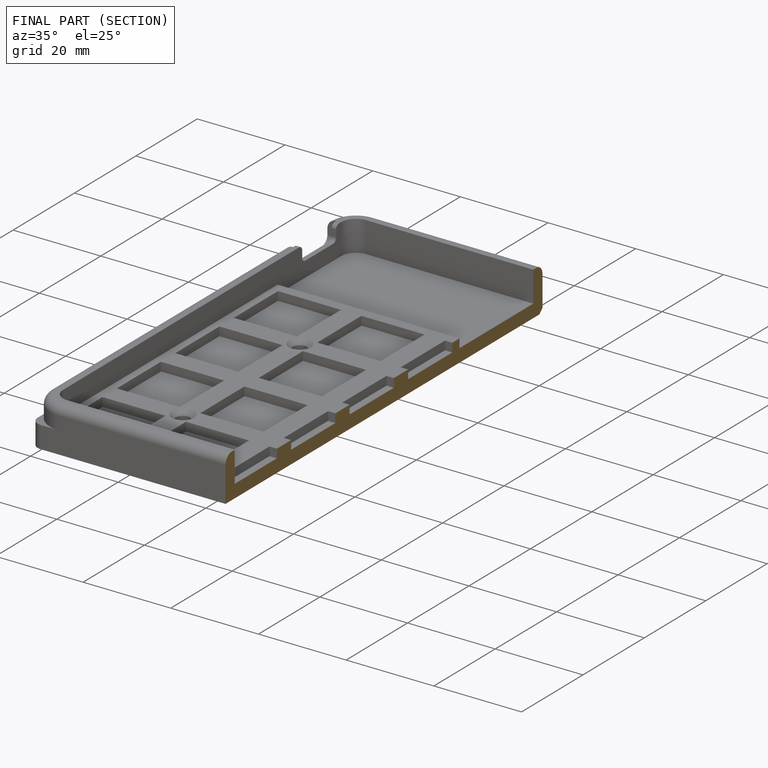
[diagram: finished part — half-section view (interior)]
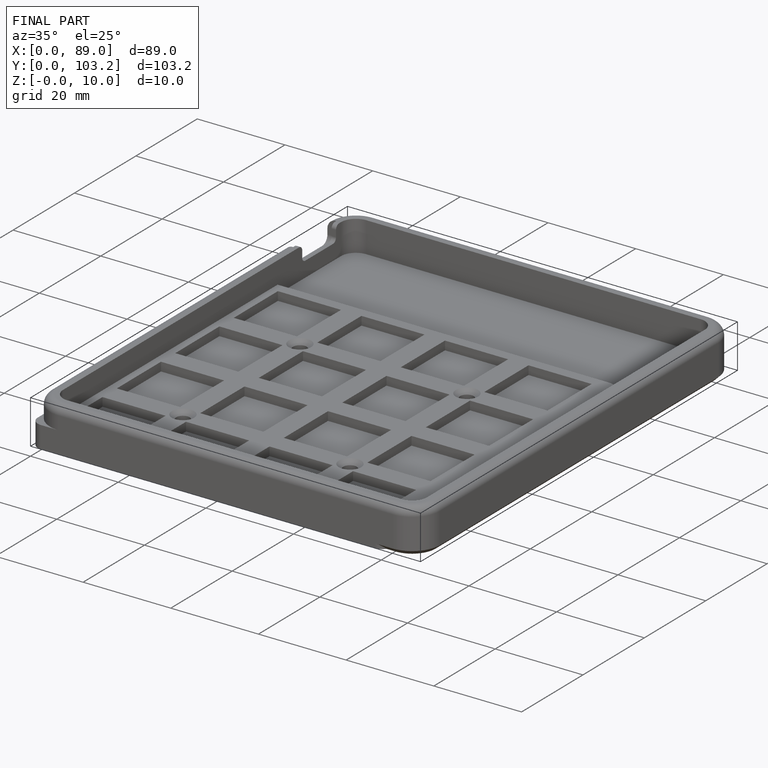
[diagram: finished part — iso view with bounding-box wireframe]
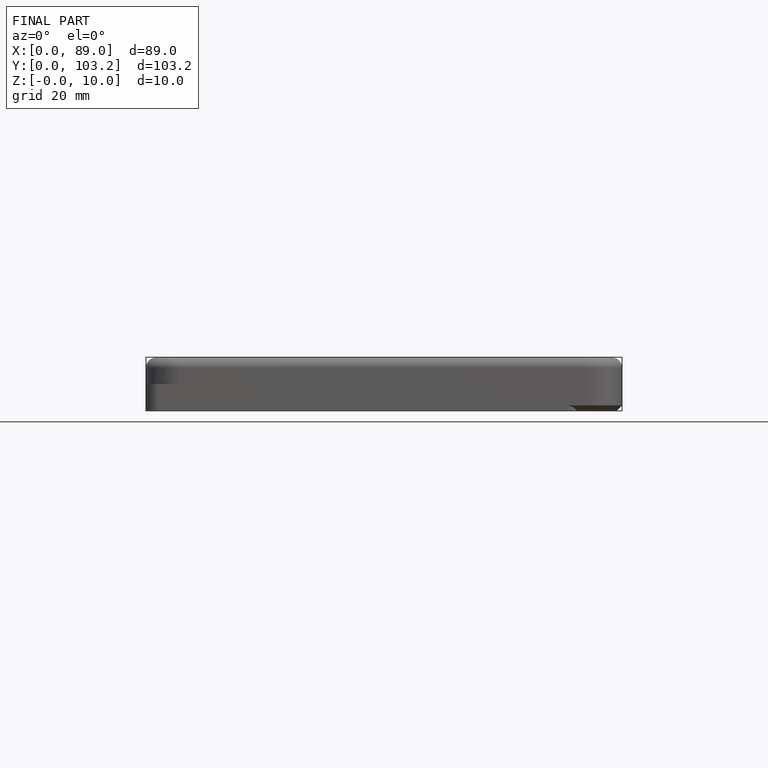
[diagram: finished part — front view with bounding-box wireframe]
